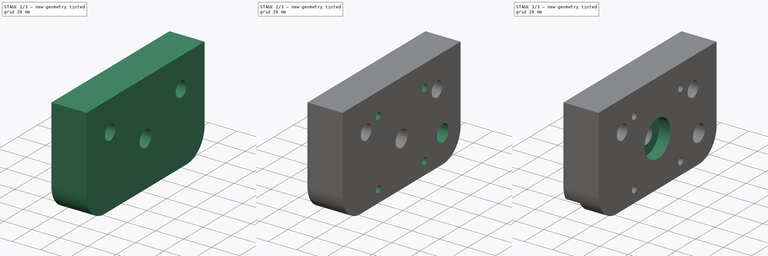
[diagram: build sequence overview — one tinted view per stage of 3, left to right]
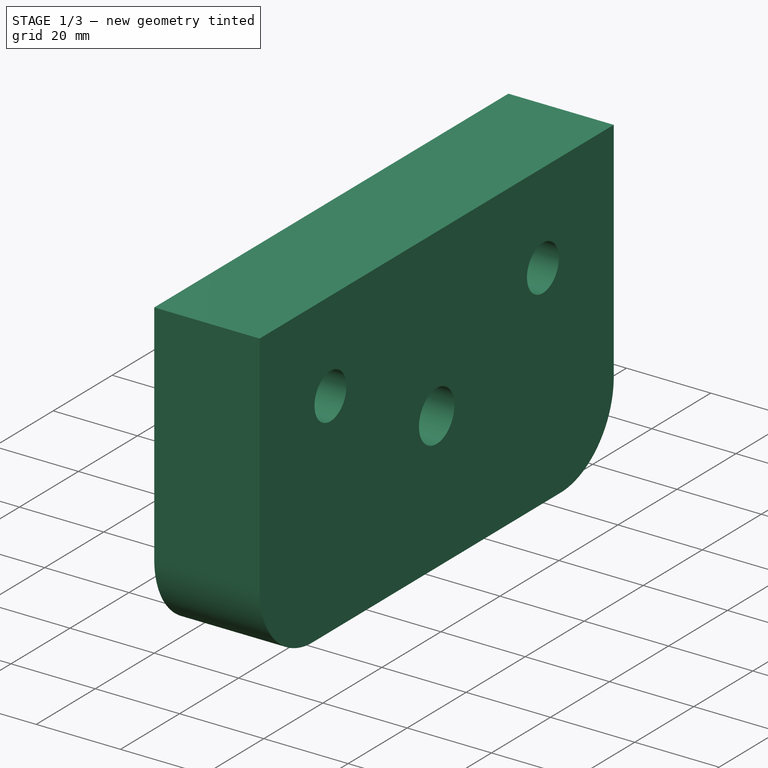
[diagram: stage 1 of 3 — iso view after this stage's code; geometry added in this stage tinted green]
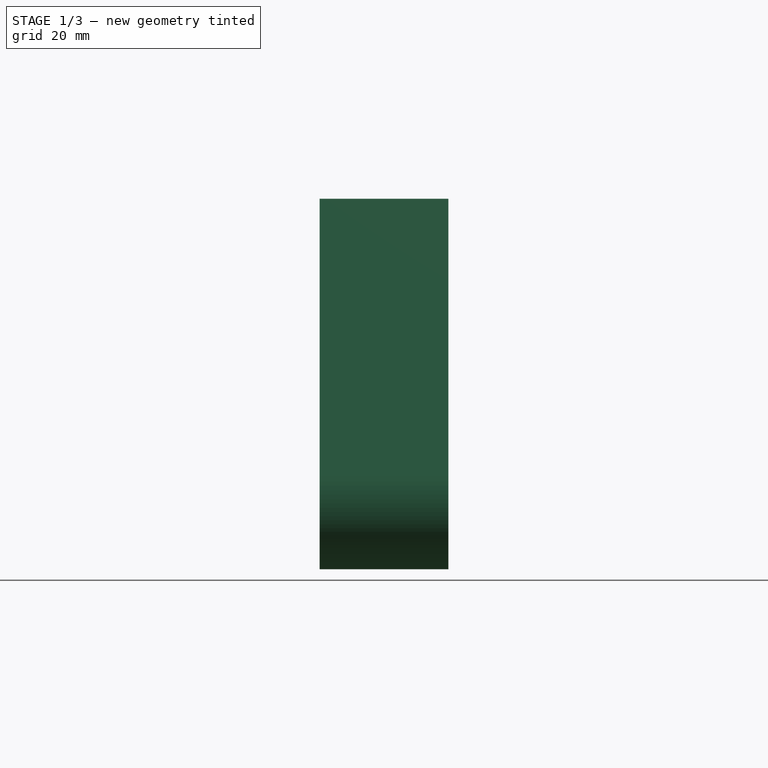
[diagram: stage 1 of 3 — front view after this stage's code; geometry added in this stage tinted green]
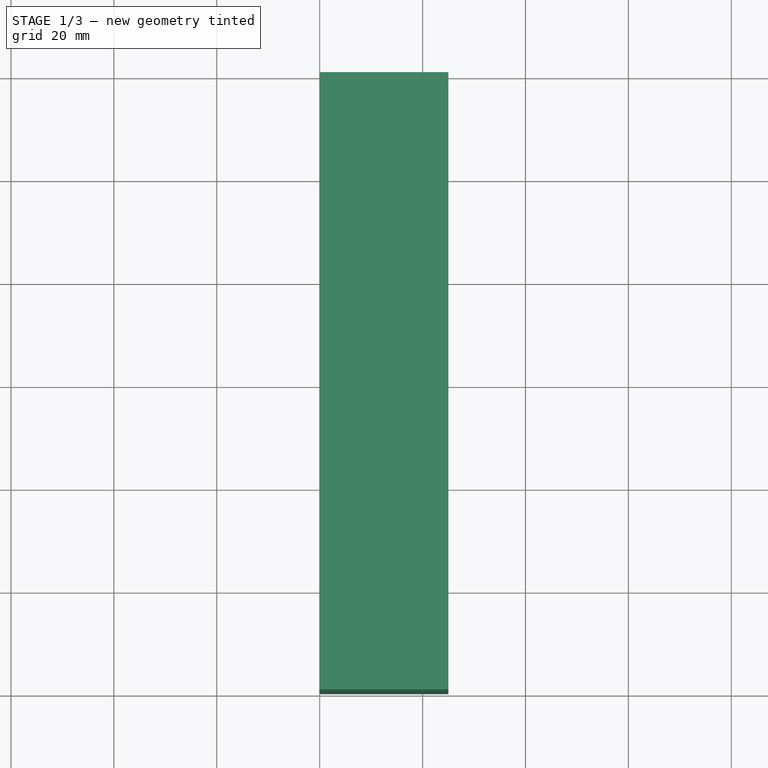
[diagram: stage 1 of 3 — top view after this stage's code; geometry added in this stage tinted green]
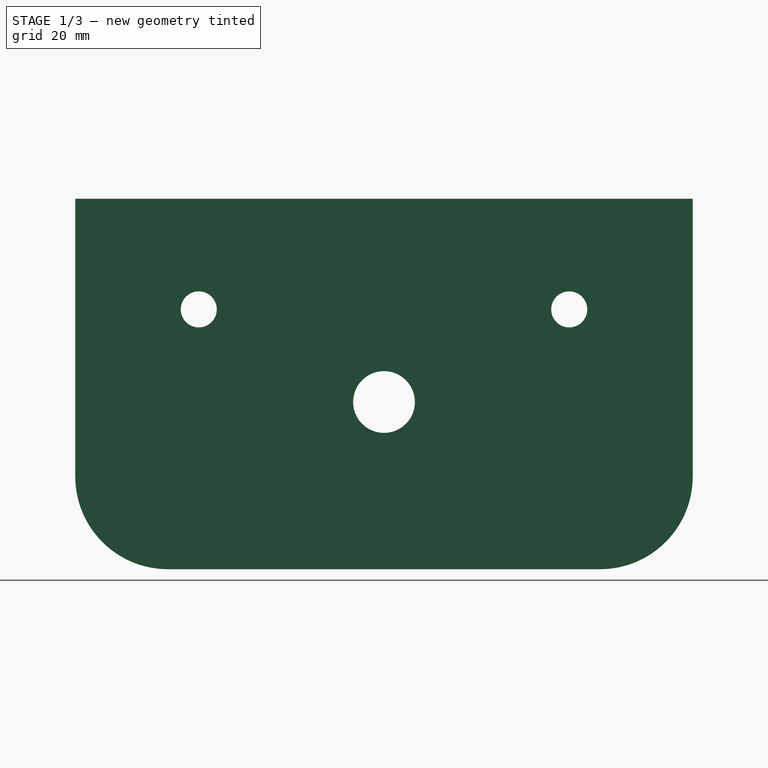
[diagram: stage 1 of 3 — right view after this stage's code; geometry added in this stage tinted green]
FCSTD DOCUMENT  (FreeCAD 0.16R6703 (Git))
Label: Bearing-seat-133-new
License: All rights reserved
LicenseURL: http://en.wikipedia.org/wiki/All_rights_reserved
objects: Sketcher::SketchObject×7, PartDesign::Pocket×6, PartDesign::Pad×1
note: 21 computed .brp shape members not serialized (recipe doc carries the construction recipe); baked Part::Feature solids carry a one-line shape summary decoded from their .brp

FEATURE [Sketcher::SketchObject] Sketch
  Placement = pos=(0,0,0) rot=(0.57735,0.57735,0.57735;2.0944rad)
  sketch-geometry (9):
    g0: LineSegment StartX=-60 StartY=-54 StartZ=0 EndX=-60 EndY=0 EndZ=0
    g1: LineSegment StartX=-60 StartY=0 StartZ=0 EndX=60 EndY=0 EndZ=0
    g2: LineSegment StartX=60 StartY=0 StartZ=0 EndX=60 EndY=-54 EndZ=0
    g3: Circle CenterX=-36 CenterY=-21.5 CenterZ=0 NormalX=0 NormalY=0 NormalZ=1 Radius=3.5
    g4: Circle CenterX=36 CenterY=-21.5 CenterZ=0 NormalX=0 NormalY=0 NormalZ=1 Radius=3.5
    g5: Circle CenterX=0 CenterY=-39.5 CenterZ=0 NormalX=0 NormalY=0 NormalZ=1 Radius=6
    g6: ArcOfCircle CenterX=-42 CenterY=-54 CenterZ=0 NormalX=0 NormalY=0 NormalZ=1 Radius=18 StartAngle=3.14159 EndAngle=4.71239
    g7: ArcOfCircle CenterX=42 CenterY=-54 CenterZ=0 NormalX=0 NormalY=0 NormalZ=1 Radius=18 StartAngle=4.71239 EndAngle=6.28319
    g8: LineSegment StartX=-42 StartY=-72 StartZ=0 EndX=42 EndY=-72 EndZ=0
  constraints (27):
    c: Vertical(g0)
    c: Coincident(g0,g1)
    c: Coincident(g1,g2)
    c: Vertical(g2)
    c: Symmetric(g3,g4,g-2)
    c: Symmetric(g0,g1,g-2)
    c: Radius(g5) = 6
    c: DistanceX(g0,g1) = 120
    c: Equal(g3,g4)
    c: Radius(g3) = 3.5
    c: DistanceX(g3,g4) = 72
    c: DistanceY(g3,g0) = 21.5
    c: DistanceY(g5,g1) = 39.5
    c: PointOnObject(g5,g-2)
    c: PointOnObject(g1,g-1)
    c: Coincident(g6,g0)
    c: Coincident(g7,g2)
    c: Tangent(g7,g2)
    c: Tangent(g0,g6)
    c: Coincident(g6,g8)
    c: Horizontal(g8)
    c: Coincident(g8,g7)
    c: Tangent(g8,g7)
    c: Tangent(g6,g8)
    c: DistanceY(g1,g7) = -72
    c: Equal(g6,g7)
    c: Radius(g6) = 18
FEATURE [PartDesign::Pad] Pad
  Length = 25
  Length2 = 100
  Placement = pos=(0,0,0) rot=(0.57735,0.57735,0.57735;2.0944rad)
  Sketch = -> Sketch
  Type = 0
FEATURE [Sketcher::SketchObject] Sketch001
  Placement = pos=(25,0,0) rot=(0.57735,0.57735,0.57735;2.0944rad)
  Support = -> Pad [Face11]
  sketch-geometry (2):
    g0: Circle CenterX=-36 CenterY=-21.5 CenterZ=0 NormalX=0 NormalY=0 NormalZ=1 Radius=5.4
    g1: Circle CenterX=36 CenterY=-21.5 CenterZ=0 NormalX=0 NormalY=0 NormalZ=1 Radius=5.4
  constraints (5):
    c: Radius(g0) = 5.4
    c: Equal(g0,g1)
    c: Symmetric(g0,g1,g-2)
    c: DistanceX(g0,g1) = 72
    c: DistanceY(g-1,g1) = -21.5
FEATURE [PartDesign::Pocket] Pocket
  Length = 15
  Placement = pos=(0,0,0) rot=(0.57735,0.57735,0.57735;2.0944rad)
  Sketch = -> Sketch001
  Type = 0
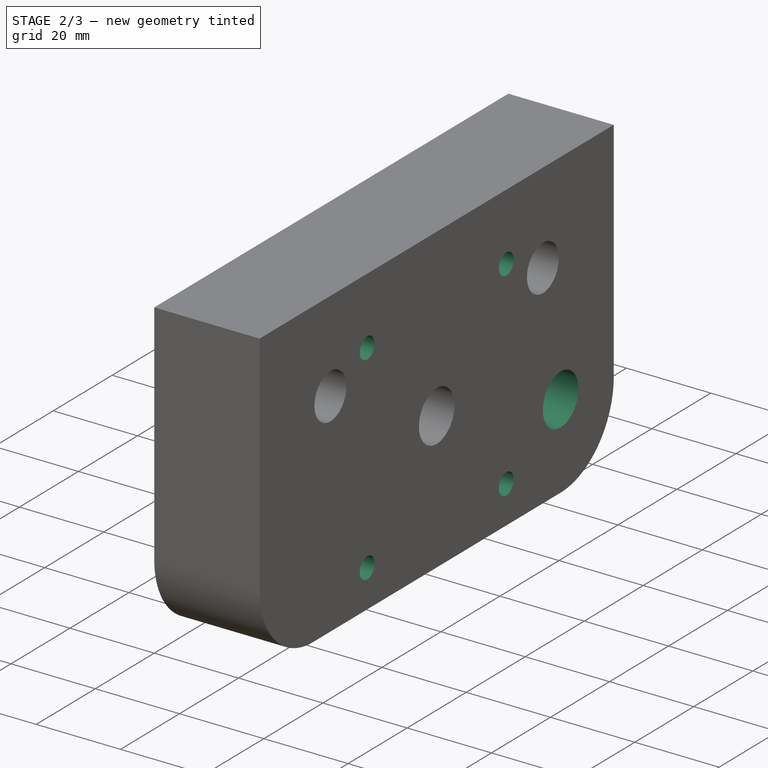
[diagram: stage 2 of 3 — iso view after this stage's code; geometry added in this stage tinted green]
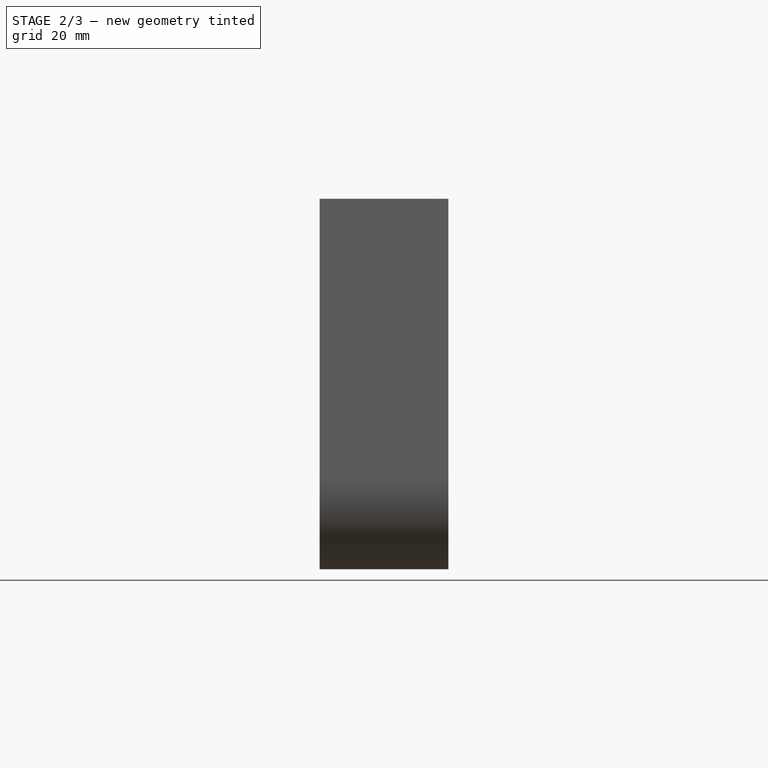
[diagram: stage 2 of 3 — front view after this stage's code; geometry added in this stage tinted green]
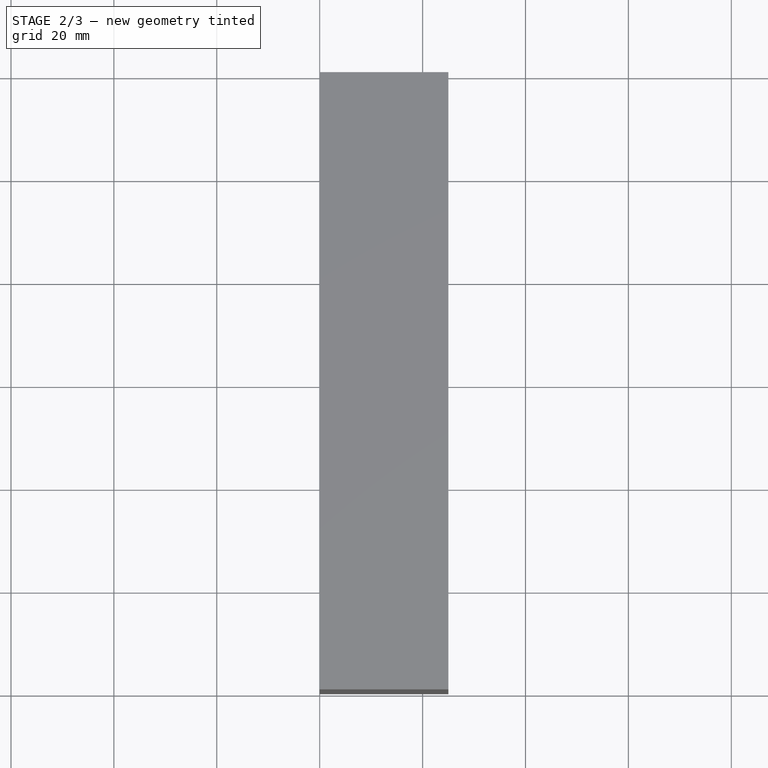
[diagram: stage 2 of 3 — top view after this stage's code; geometry added in this stage tinted green]
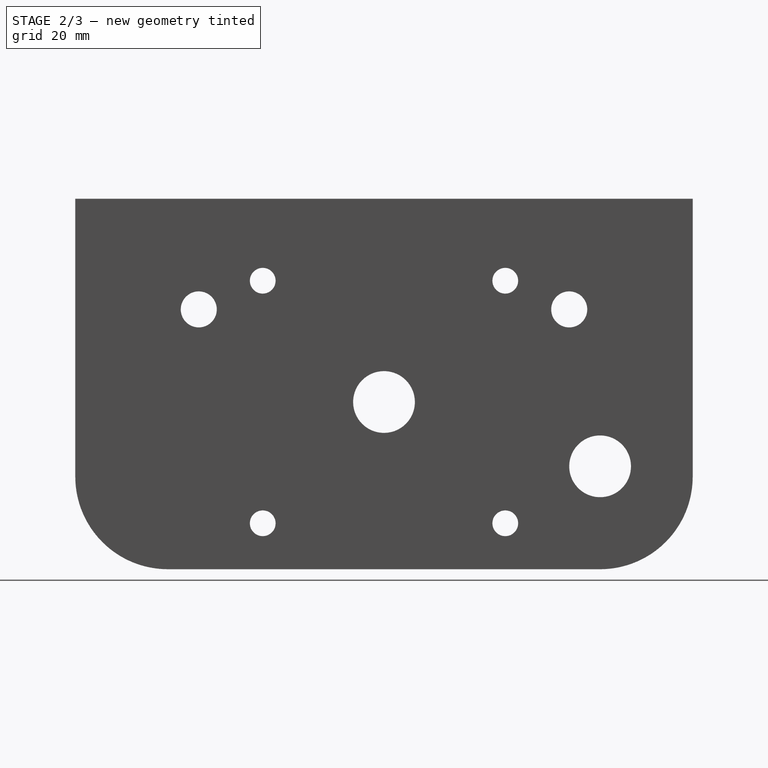
[diagram: stage 2 of 3 — right view after this stage's code; geometry added in this stage tinted green]
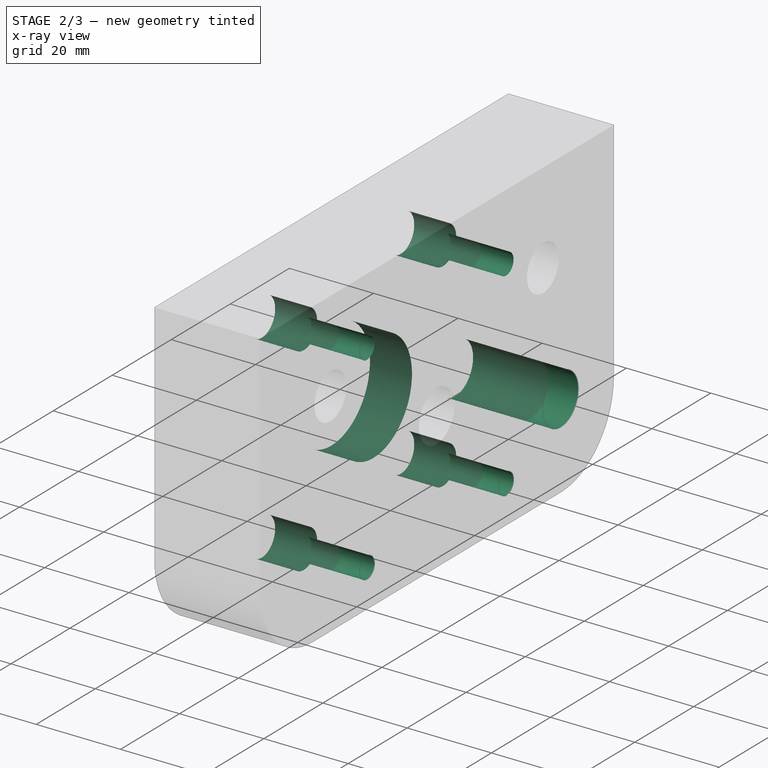
[diagram: stage 2 of 3 — x-ray composite at the iso view; earlier geometry ghosted, this stage's added geometry solid]
FEATURE [Sketcher::SketchObject] Sketch002
  Placement = pos=(0,0,0) rot=(0.57735,0.57735,-0.57735;4.18879rad)
  Support = -> Pocket [Face4]
  sketch-geometry (1):
    g0: Circle CenterX=0 CenterY=39.5 CenterZ=0 NormalX=0 NormalY=0 NormalZ=1 Radius=13.05
  constraints (3):
    c: PointOnObject(g0,g-2)
    c: Radius(g0) = 13.05
    c: DistanceY(g-1,g0) = 39.5
FEATURE [PartDesign::Pocket] Pocket001
  Length = 10
  Placement = pos=(0,0,0) rot=(0.57735,0.57735,0.57735;2.0944rad)
  Sketch = -> Sketch002
  Type = 0
FEATURE [Sketcher::SketchObject] Sketch006  label="Sketch003"
  Placement = pos=(25,0,0) rot=(0.57735,0.57735,0.57735;2.0944rad)
  Support = -> Pocket001 [Face5]
  sketch-geometry (5):
    g0: Circle CenterX=-23.57 CenterY=-15.93 CenterZ=0 NormalX=0 NormalY=0 NormalZ=1 Radius=2.5
    g1: Circle CenterX=23.57 CenterY=-15.93 CenterZ=0 NormalX=0 NormalY=0 NormalZ=1 Radius=2.5
    g2: Circle CenterX=-23.57 CenterY=-63.07 CenterZ=0 NormalX=0 NormalY=0 NormalZ=1 Radius=2.5
    g3: Circle CenterX=23.57 CenterY=-63.07 CenterZ=0 NormalX=0 NormalY=0 NormalZ=1 Radius=2.5
    g4: Circle CenterX=42 CenterY=-52 CenterZ=0 NormalX=0 NormalY=0 NormalZ=1 Radius=6
  constraints (12):
    c: Symmetric(g2,g3,g-2)
    c: Symmetric(g1,g0,g-2)
    c: Equal(g3,g0)
    c: Equal(g0,g1)
    c: Equal(g1,g2)
    c: Radius(g0) = 2.5
    c: DistanceY(g2,g0) = 47.14
    c: DistanceX(g0,g1) = 47.14
    c: DistanceX(g2,g3) = 47.14
    c: Radius(g4) = 6
    c: DistanceX(g-1,g4) = 42
    c: DistanceY(g-1,g4) = -52
FEATURE [PartDesign::Pocket] Pocket002
  Length = 25
  Placement = pos=(0,0,0) rot=(0.57735,0.57735,0.57735;2.0944rad)
  Sketch = -> Sketch006
  Type = 0
FEATURE [Sketcher::SketchObject] Sketch005  label="Sketch004"
  Placement = pos=(0,0,0) rot=(0.57735,0.57735,-0.57735;4.18879rad)
  Support = -> Pocket002 [Face4]
  sketch-geometry (4):
    g0: Circle CenterX=-23.57 CenterY=63.07 CenterZ=0 NormalX=0 NormalY=0 NormalZ=1 Radius=4.5
    g1: Circle CenterX=23.57 CenterY=63.07 CenterZ=0 NormalX=0 NormalY=0 NormalZ=1 Radius=4.5
    g2: Circle CenterX=-23.57 CenterY=15.93 CenterZ=0 NormalX=0 NormalY=0 NormalZ=1 Radius=4.5
    g3: Circle CenterX=23.57 CenterY=15.93 CenterZ=0 NormalX=0 NormalY=0 NormalZ=1 Radius=4.5
  constraints (10):
    c: Symmetric(g2,g3,g-2)
    c: Symmetric(g1,g0,g-2)
    c: Equal(g3,g0)
    c: Equal(g0,g1)
    c: Equal(g1,g2)
    c: Radius(g0) = 4.5
    c: DistanceY(g2,g0) = 47.14
    c: DistanceX(g0,g1) = 47.14
    c: DistanceX(g2,g3) = 47.14
    c: DistanceY(g-1,g3) = 15.93
FEATURE [PartDesign::Pocket] Pocket003
  Length = 10
  Placement = pos=(0,0,0) rot=(0.57735,0.57735,0.57735;2.0944rad)
  Sketch = -> Sketch005
  Type = 0
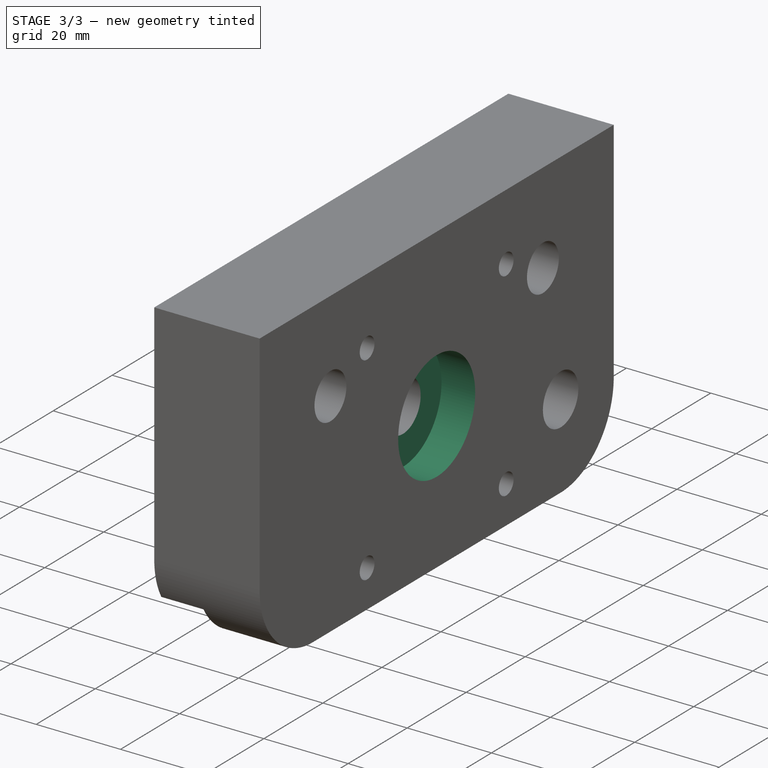
[diagram: stage 3 of 3 — iso view after this stage's code; geometry added in this stage tinted green]
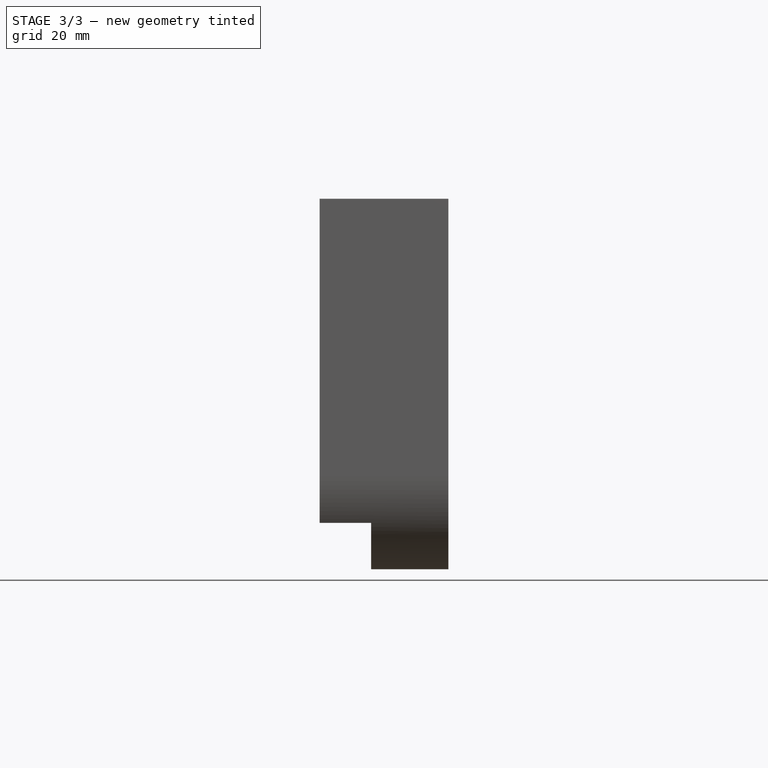
[diagram: stage 3 of 3 — front view after this stage's code; geometry added in this stage tinted green]
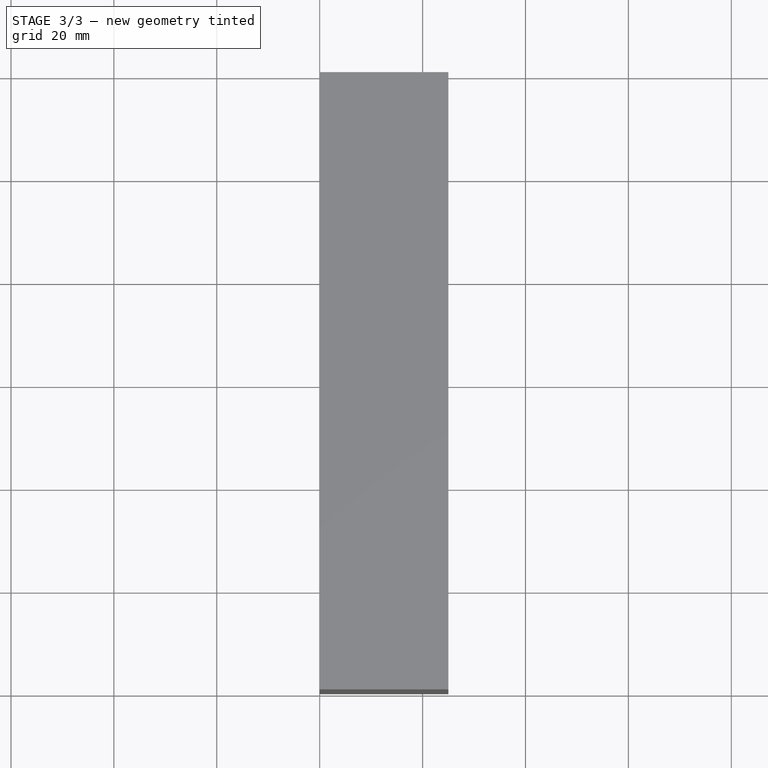
[diagram: stage 3 of 3 — top view after this stage's code; geometry added in this stage tinted green]
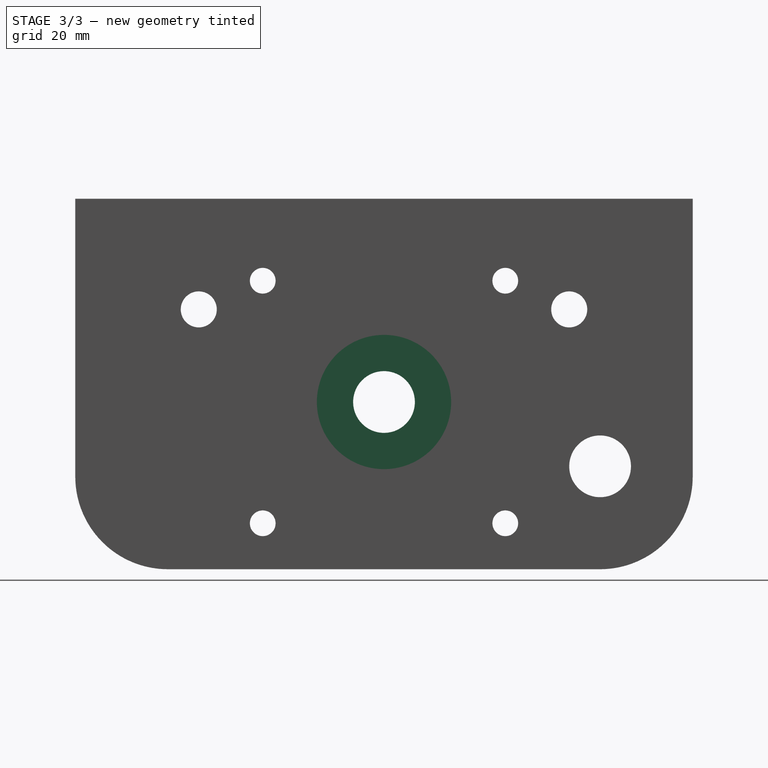
[diagram: stage 3 of 3 — right view after this stage's code; geometry added in this stage tinted green]
FEATURE [Sketcher::SketchObject] Sketch007  label="Sketch005"
  Placement = pos=(25,0,0) rot=(0.57735,0.57735,0.57735;2.0944rad)
  Support = -> Pocket003 [Face5]
  sketch-geometry (1):
    g0: Circle CenterX=0 CenterY=-39.5 CenterZ=0 NormalX=0 NormalY=0 NormalZ=1 Radius=13.05
  constraints (3):
    c: PointOnObject(g0,g-2)
    c: Radius(g0) = 13.05
    c: DistanceY(g-1,g0) = -39.5
FEATURE [PartDesign::Pocket] Pocket004
  Length = 8
  Placement = pos=(0,0,0) rot=(0.57735,0.57735,0.57735;2.0944rad)
  Sketch = -> Sketch007
  Type = 0
FEATURE [Sketcher::SketchObject] Sketch009  label="Sketch006"
  Placement = pos=(0,0,0) rot=(0.57735,0.57735,-0.57735;4.18879rad)
  Support = -> Pocket004 [Face4]
  sketch-geometry (4):
    g0: LineSegment StartX=-60 StartY=72 StartZ=0 EndX=60 EndY=72 EndZ=0
    g1: LineSegment StartX=60 StartY=72 StartZ=0 EndX=60 EndY=63 EndZ=0
    g2: LineSegment StartX=60 StartY=63 StartZ=0 EndX=-60 EndY=63 EndZ=0
    g3: LineSegment StartX=-60 StartY=63 StartZ=0 EndX=-60 EndY=72 EndZ=0
  constraints (12):
    c: Coincident(g0,g1)
    c: Coincident(g1,g2)
    c: Coincident(g2,g3)
    c: Coincident(g3,g0)
    c: Horizontal(g0)
    c: Horizontal(g2)
    c: Vertical(g1)
    c: Vertical(g3)
    c: DistanceY(g1) = -9
    c: DistanceY(g-1,g1) = 63
    c: Symmetric(g2,g1,g-2)
    c: DistanceX(g0) = 120
FEATURE [PartDesign::Pocket] Pocket005
  Length = 10
  Placement = pos=(0,0,0) rot=(0.57735,0.57735,0.57735;2.0944rad)
  Sketch = -> Sketch009
  Type = 0
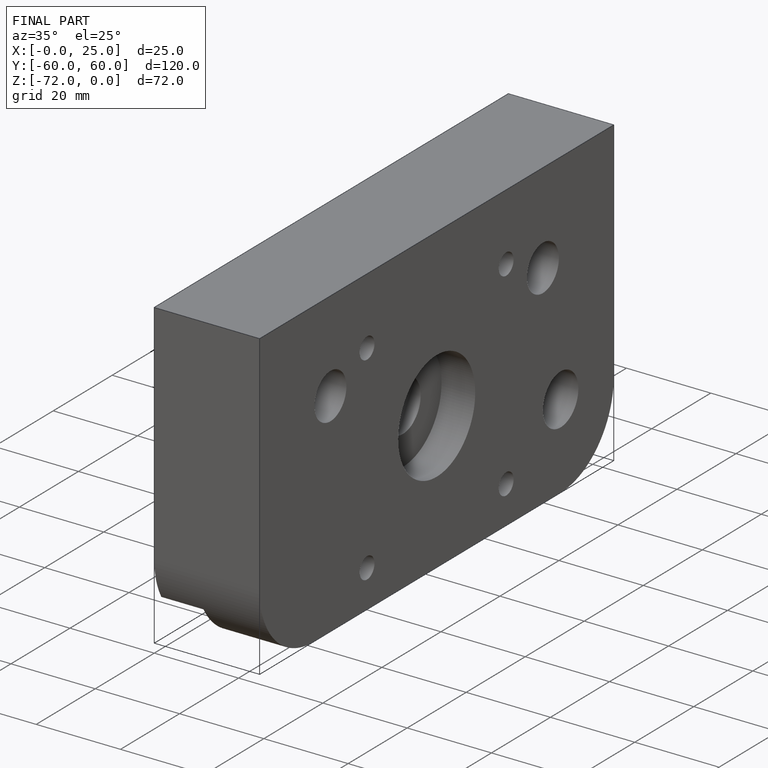
[diagram: finished part — iso view with bounding-box wireframe]
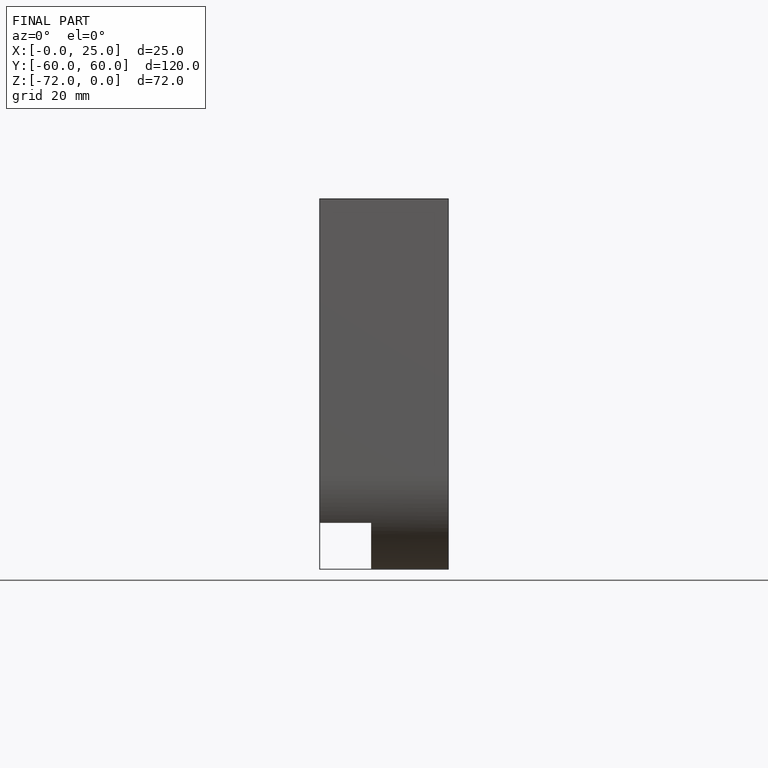
[diagram: finished part — front view with bounding-box wireframe]
